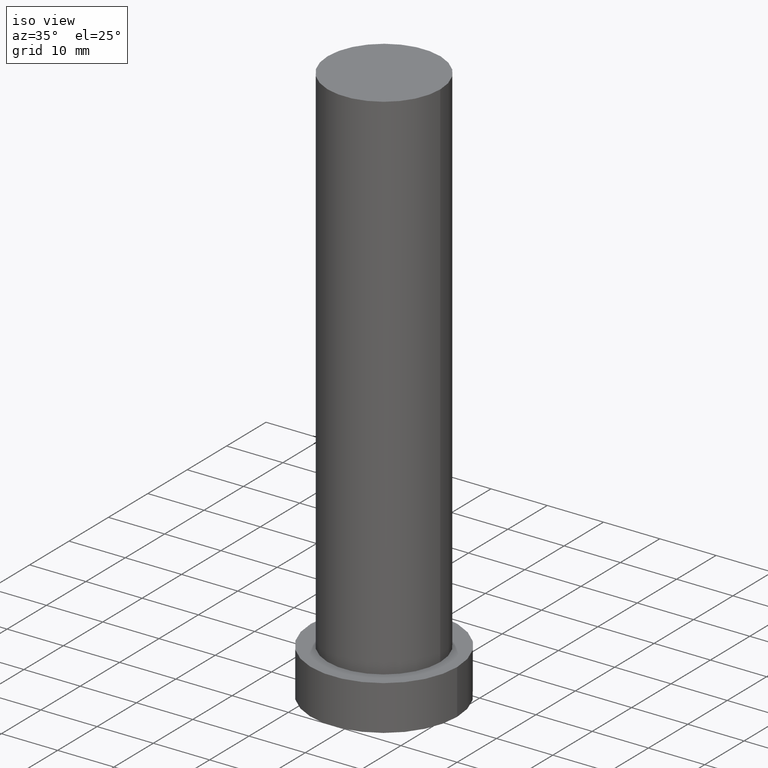
[diagram: clean part render]
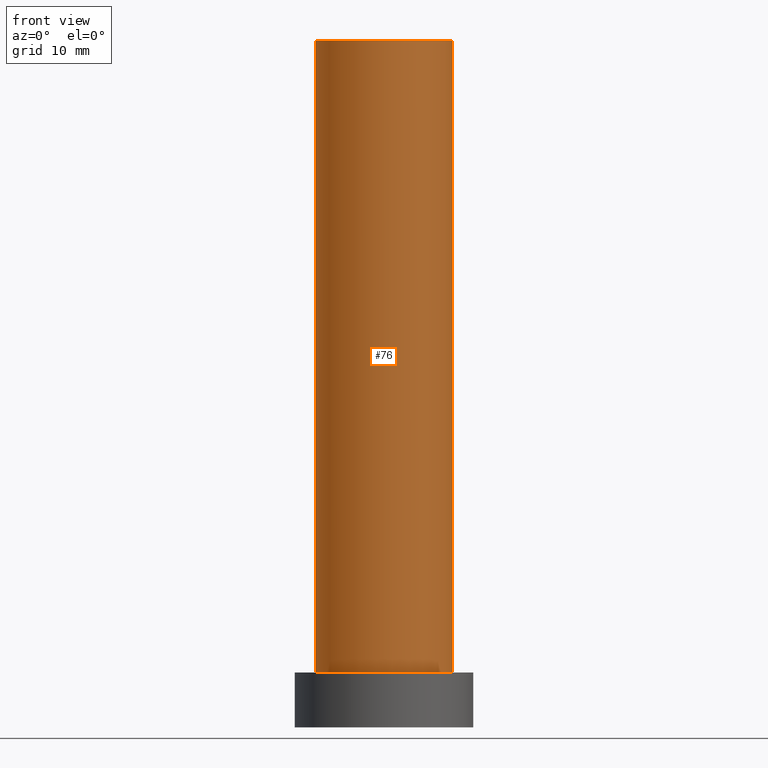
[diagram: tour spotlight — one face highlighted and labeled with its STEP entity id]
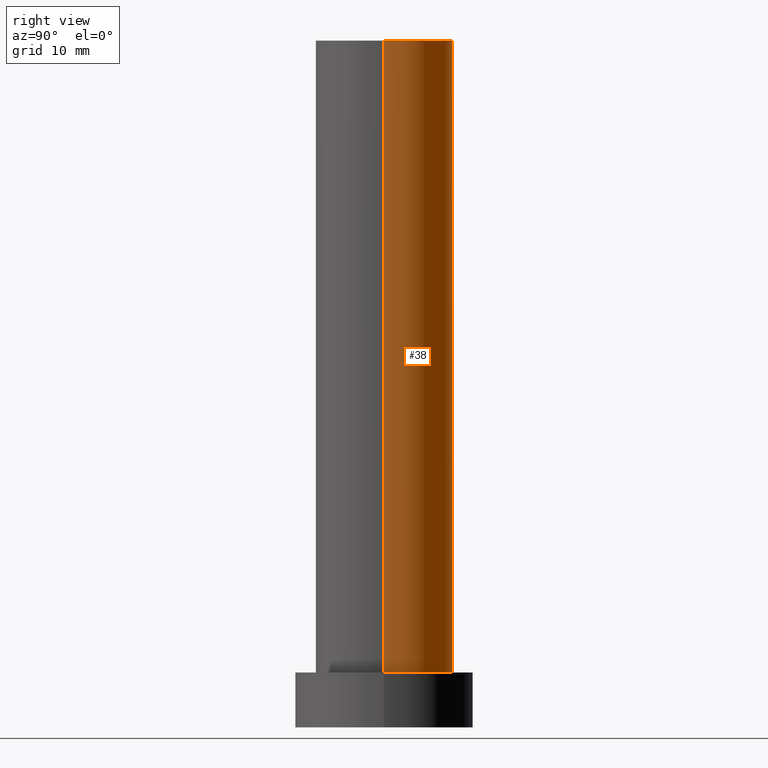
[diagram: tour spotlight — one face highlighted and labeled with its STEP entity id]
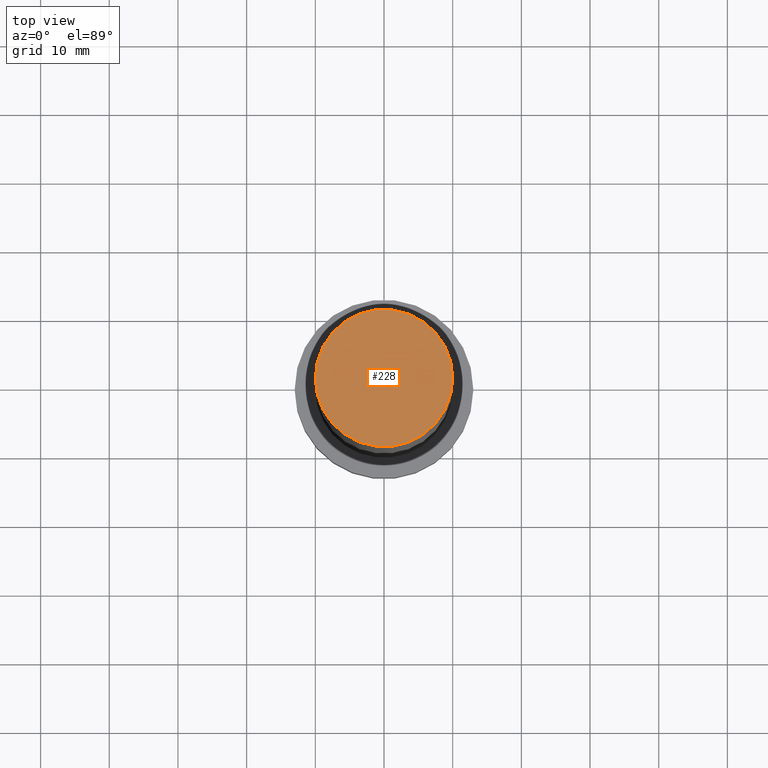
[diagram: tour spotlight — one face highlighted and labeled with its STEP entity id]
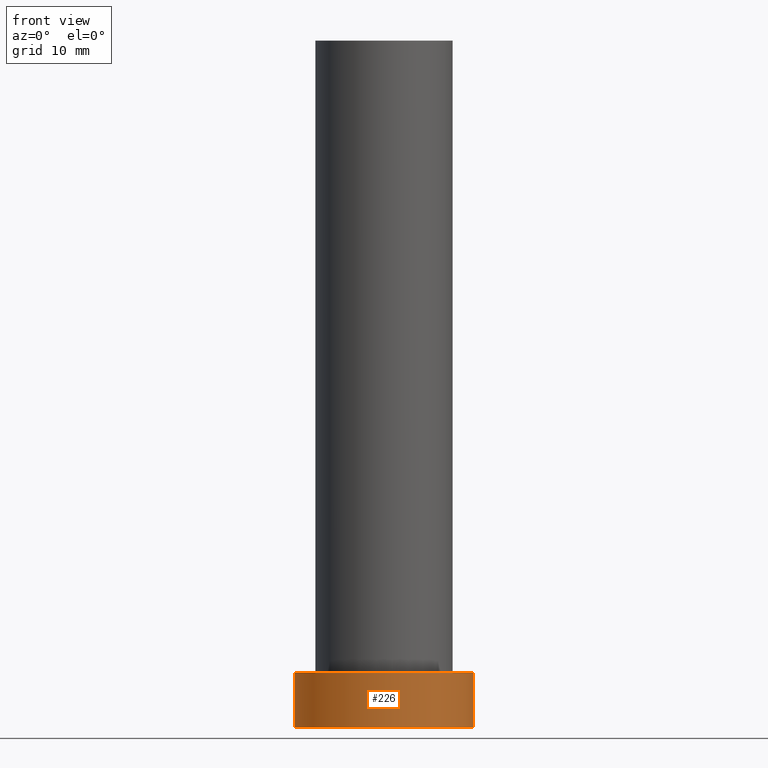
[diagram: tour spotlight — one face highlighted and labeled with its STEP entity id]
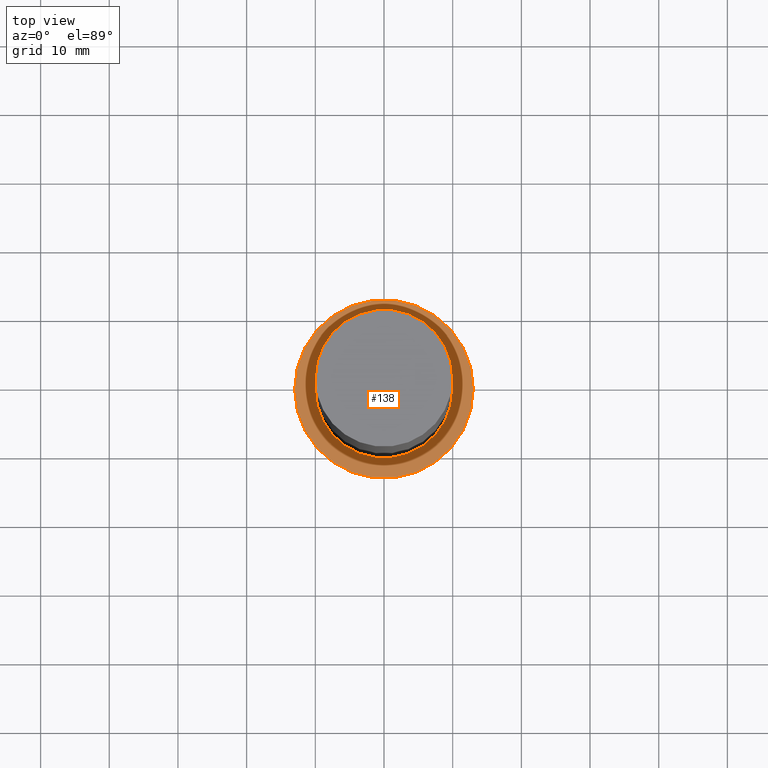
[diagram: tour spotlight — one face highlighted and labeled with its STEP entity id]
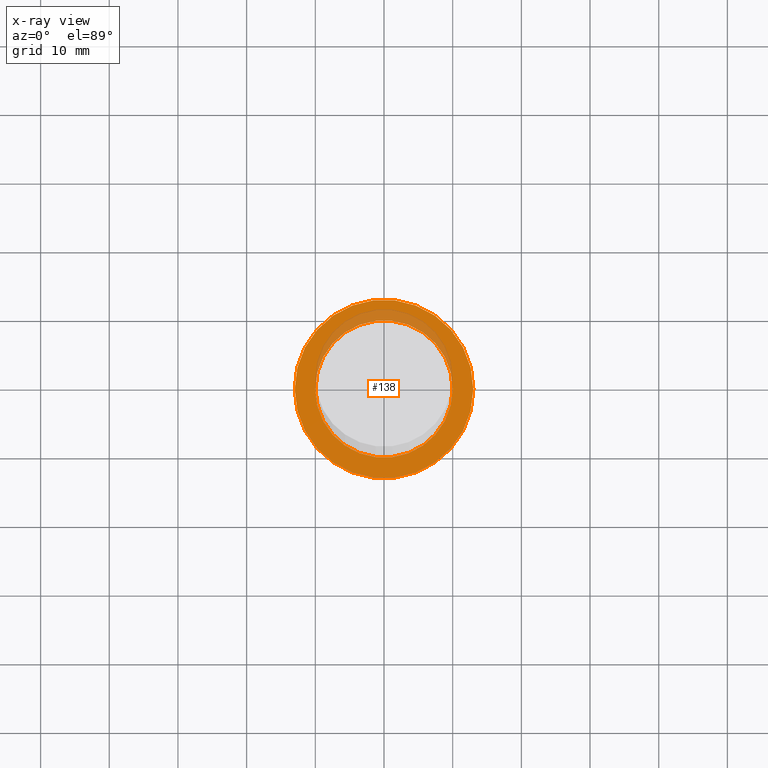
[diagram: x-ray of the same camera — body ghosted, this tour face saturated]
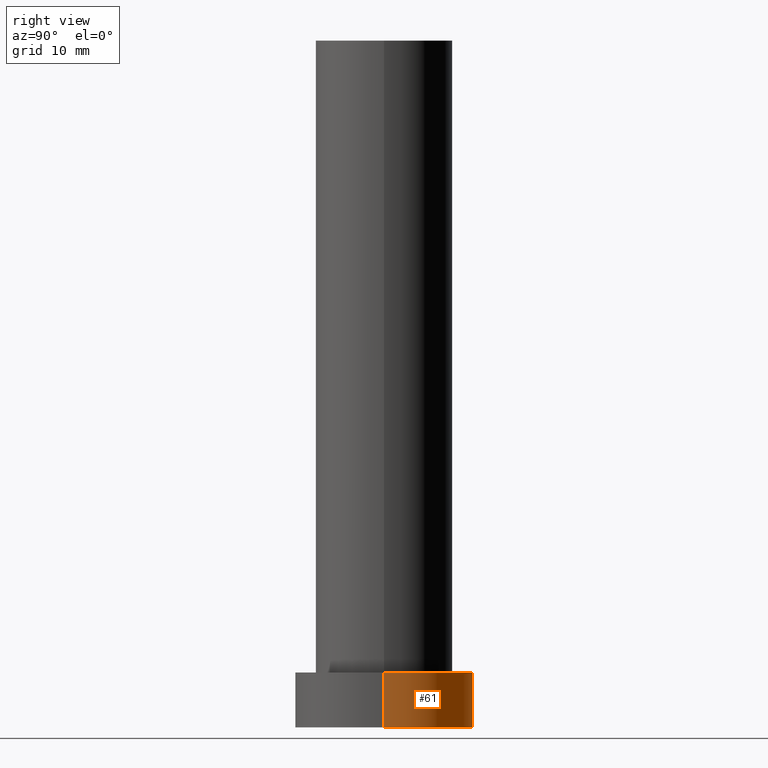
[diagram: tour spotlight — one face highlighted and labeled with its STEP entity id]
A machine part: a face-by-face anatomy tour. The part has 7 B-rep faces; the first image is the clean iso view, then the 6 largest visible faces are spotlighted one at a time (largest first), each with its STEP entity span.

Face 1 — front view, entity #76. In plain terms, the highlighted cylindrical surface (partial cylindrical patch) has radius 10 mm, axis along (-0, -0, -1).
Definition (entity closure, byte-faithful):
#4 = AXIS2_PLACEMENT_3D ( 'NONE', #30, #250, #51 ) ;
#7 = DIRECTION ( 'NONE',  ( 1.000000000000000000, 0.000000000000000000, 0.000000000000000000 ) ) ;
#9 = VECTOR ( 'NONE', #172, 1000.000000000000000 ) ;
#15 = CIRCLE ( 'NONE', #4, 10.00000000000000000 ) ;
#18 = VERTEX_POINT ( 'NONE', #124 ) ;
#22 = EDGE_CURVE ( 'NONE', #130, #18, #192, .T. ) ;
#30 = CARTESIAN_POINT ( 'NONE',  ( 0.000000000000000000, 0.000000000000000000, 8.000000000000000000 ) ) ;
#32 = DIRECTION ( 'NONE',  ( -0.000000000000000000, -0.000000000000000000, -1.000000000000000000 ) ) ;
#33 = CYLINDRICAL_SURFACE ( 'NONE', #144, 10.00000000000000000 ) ;
#51 = DIRECTION ( 'NONE',  ( 1.000000000000000000, 0.000000000000000000, 0.000000000000000000 ) ) ;
#52 = EDGE_LOOP ( 'NONE', ( #198, #238, #165, #135 ) ) ;
#54 = CARTESIAN_POINT ( 'NONE',  ( -10.00000000000000000, 0.000000000000000000, 100.0000000000000000 ) ) ;
#73 = EDGE_CURVE ( 'NONE', #18, #133, #15, .T. ) ;
#76 = ADVANCED_FACE ( 'NONE', ( #89 ), #33, .T. ) ;
#77 = CARTESIAN_POINT ( 'NONE',  ( 10.00000000000000000, 1.224646799147353256E-15, 8.000000000000000000 ) ) ;
#83 = DIRECTION ( 'NONE',  ( -1.000000000000000000, 0.000000000000000000, 0.000000000000000000 ) ) ;
#85 = CARTESIAN_POINT ( 'NONE',  ( -10.00000000000000000, 0.000000000000000000, 100.0000000000000000 ) ) ;
#89 = FACE_OUTER_BOUND ( 'NONE', #52, .T. ) ;
#90 = CIRCLE ( 'NONE', #241, 10.00000000000000000 ) ;
#92 = CARTESIAN_POINT ( 'NONE',  ( 10.00000000000000000, 1.224646799147353256E-15, 100.0000000000000000 ) ) ;
#124 = CARTESIAN_POINT ( 'NONE',  ( -10.00000000000000000, 0.000000000000000000, 8.000000000000000000 ) ) ;
#130 = VERTEX_POINT ( 'NONE', #54 ) ;
#133 = VERTEX_POINT ( 'NONE', #77 ) ;
#135 = ORIENTED_EDGE ( 'NONE', *, *, #73, .T. ) ;
#143 = VERTEX_POINT ( 'NONE', #207 ) ;
#144 = AXIS2_PLACEMENT_3D ( 'NONE', #191, #32, #83 ) ;
#161 = DIRECTION ( 'NONE',  ( -0.000000000000000000, -0.000000000000000000, -1.000000000000000000 ) ) ;
#165 = ORIENTED_EDGE ( 'NONE', *, *, #22, .T. ) ;
#172 = DIRECTION ( 'NONE',  ( -0.000000000000000000, -0.000000000000000000, -1.000000000000000000 ) ) ;
#174 = EDGE_CURVE ( 'NONE', #130, #143, #90, .T. ) ;
#182 = LINE ( 'NONE', #92, #248 ) ;
#191 = CARTESIAN_POINT ( 'NONE',  ( 0.000000000000000000, 0.000000000000000000, 100.0000000000000000 ) ) ;
#192 = LINE ( 'NONE', #85, #9 ) ;
#195 = CARTESIAN_POINT ( 'NONE',  ( 0.000000000000000000, 0.000000000000000000, 100.0000000000000000 ) ) ;
#198 = ORIENTED_EDGE ( 'NONE', *, *, #199, .F. ) ;
#199 = EDGE_CURVE ( 'NONE', #143, #133, #182, .T. ) ;
#206 = DIRECTION ( 'NONE',  ( 0.000000000000000000, 0.000000000000000000, 1.000000000000000000 ) ) ;
#207 = CARTESIAN_POINT ( 'NONE',  ( 10.00000000000000000, 1.224646799147353256E-15, 100.0000000000000000 ) ) ;
#238 = ORIENTED_EDGE ( 'NONE', *, *, #174, .F. ) ;
#241 = AXIS2_PLACEMENT_3D ( 'NONE', #195, #206, #7 ) ;
#248 = VECTOR ( 'NONE', #161, 1000.000000000000000 ) ;
#250 = DIRECTION ( 'NONE',  ( 0.000000000000000000, 0.000000000000000000, 1.000000000000000000 ) ) ;

Face 2 — right view, entity #38. In plain terms, the highlighted cylindrical surface (partial cylindrical patch) has radius 10 mm, axis along (-0, -0, -1).
Definition (entity closure, byte-faithful):
#9 = VECTOR ( 'NONE', #172, 1000.000000000000000 ) ;
#11 = FACE_OUTER_BOUND ( 'NONE', #215, .T. ) ;
#13 = ORIENTED_EDGE ( 'NONE', *, *, #22, .F. ) ;
#14 = CARTESIAN_POINT ( 'NONE',  ( 0.000000000000000000, 0.000000000000000000, 100.0000000000000000 ) ) ;
#17 = EDGE_CURVE ( 'NONE', #133, #18, #218, .T. ) ;
#18 = VERTEX_POINT ( 'NONE', #124 ) ;
#22 = EDGE_CURVE ( 'NONE', #130, #18, #192, .T. ) ;
#34 = DIRECTION ( 'NONE',  ( 0.000000000000000000, 0.000000000000000000, 1.000000000000000000 ) ) ;
#38 = ADVANCED_FACE ( 'NONE', ( #11 ), #101, .T. ) ;
#41 = ORIENTED_EDGE ( 'NONE', *, *, #17, .T. ) ;
#43 = ORIENTED_EDGE ( 'NONE', *, *, #80, .F. ) ;
#54 = CARTESIAN_POINT ( 'NONE',  ( -10.00000000000000000, 0.000000000000000000, 100.0000000000000000 ) ) ;
#72 = CARTESIAN_POINT ( 'NONE',  ( 0.000000000000000000, 0.000000000000000000, 8.000000000000000000 ) ) ;
#77 = CARTESIAN_POINT ( 'NONE',  ( 10.00000000000000000, 1.224646799147353256E-15, 8.000000000000000000 ) ) ;
#80 = EDGE_CURVE ( 'NONE', #143, #130, #225, .T. ) ;
#82 = AXIS2_PLACEMENT_3D ( 'NONE', #14, #127, #146 ) ;
#84 = AXIS2_PLACEMENT_3D ( 'NONE', #168, #252, #247 ) ;
#85 = CARTESIAN_POINT ( 'NONE',  ( -10.00000000000000000, 0.000000000000000000, 100.0000000000000000 ) ) ;
#92 = CARTESIAN_POINT ( 'NONE',  ( 10.00000000000000000, 1.224646799147353256E-15, 100.0000000000000000 ) ) ;
#101 = CYLINDRICAL_SURFACE ( 'NONE', #82, 10.00000000000000000 ) ;
#106 = AXIS2_PLACEMENT_3D ( 'NONE', #72, #34, #193 ) ;
#124 = CARTESIAN_POINT ( 'NONE',  ( -10.00000000000000000, 0.000000000000000000, 8.000000000000000000 ) ) ;
#127 = DIRECTION ( 'NONE',  ( -0.000000000000000000, -0.000000000000000000, -1.000000000000000000 ) ) ;
#130 = VERTEX_POINT ( 'NONE', #54 ) ;
#133 = VERTEX_POINT ( 'NONE', #77 ) ;
#143 = VERTEX_POINT ( 'NONE', #207 ) ;
#146 = DIRECTION ( 'NONE',  ( -1.000000000000000000, 0.000000000000000000, 0.000000000000000000 ) ) ;
#161 = DIRECTION ( 'NONE',  ( -0.000000000000000000, -0.000000000000000000, -1.000000000000000000 ) ) ;
#168 = CARTESIAN_POINT ( 'NONE',  ( 0.000000000000000000, 0.000000000000000000, 100.0000000000000000 ) ) ;
#172 = DIRECTION ( 'NONE',  ( -0.000000000000000000, -0.000000000000000000, -1.000000000000000000 ) ) ;
#182 = LINE ( 'NONE', #92, #248 ) ;
#192 = LINE ( 'NONE', #85, #9 ) ;
#193 = DIRECTION ( 'NONE',  ( 1.000000000000000000, 0.000000000000000000, 0.000000000000000000 ) ) ;
#199 = EDGE_CURVE ( 'NONE', #143, #133, #182, .T. ) ;
#207 = CARTESIAN_POINT ( 'NONE',  ( 10.00000000000000000, 1.224646799147353256E-15, 100.0000000000000000 ) ) ;
#215 = EDGE_LOOP ( 'NONE', ( #43, #253, #41, #13 ) ) ;
#218 = CIRCLE ( 'NONE', #106, 10.00000000000000000 ) ;
#225 = CIRCLE ( 'NONE', #84, 10.00000000000000000 ) ;
#247 = DIRECTION ( 'NONE',  ( 1.000000000000000000, 0.000000000000000000, 0.000000000000000000 ) ) ;
#248 = VECTOR ( 'NONE', #161, 1000.000000000000000 ) ;
#252 = DIRECTION ( 'NONE',  ( 0.000000000000000000, 0.000000000000000000, 1.000000000000000000 ) ) ;
#253 = ORIENTED_EDGE ( 'NONE', *, *, #199, .T. ) ;

Face 3 — top view, entity #228. In plain terms, the highlighted planar face has unit normal (0, 0, 1).
Definition (entity closure, byte-faithful):
#1 = DIRECTION ( 'NONE',  ( 1.000000000000000000, 0.000000000000000000, -0.000000000000000000 ) ) ;
#7 = DIRECTION ( 'NONE',  ( 1.000000000000000000, 0.000000000000000000, 0.000000000000000000 ) ) ;
#27 = ORIENTED_EDGE ( 'NONE', *, *, #174, .T. ) ;
#54 = CARTESIAN_POINT ( 'NONE',  ( -10.00000000000000000, 0.000000000000000000, 100.0000000000000000 ) ) ;
#60 = PLANE ( 'NONE',  #156 ) ;
#80 = EDGE_CURVE ( 'NONE', #143, #130, #225, .T. ) ;
#84 = AXIS2_PLACEMENT_3D ( 'NONE', #168, #252, #247 ) ;
#90 = CIRCLE ( 'NONE', #241, 10.00000000000000000 ) ;
#130 = VERTEX_POINT ( 'NONE', #54 ) ;
#134 = DIRECTION ( 'NONE',  ( 0.000000000000000000, 0.000000000000000000, 1.000000000000000000 ) ) ;
#141 = EDGE_LOOP ( 'NONE', ( #27, #201 ) ) ;
#143 = VERTEX_POINT ( 'NONE', #207 ) ;
#156 = AXIS2_PLACEMENT_3D ( 'NONE', #236, #134, #1 ) ;
#168 = CARTESIAN_POINT ( 'NONE',  ( 0.000000000000000000, 0.000000000000000000, 100.0000000000000000 ) ) ;
#174 = EDGE_CURVE ( 'NONE', #130, #143, #90, .T. ) ;
#195 = CARTESIAN_POINT ( 'NONE',  ( 0.000000000000000000, 0.000000000000000000, 100.0000000000000000 ) ) ;
#201 = ORIENTED_EDGE ( 'NONE', *, *, #80, .T. ) ;
#206 = DIRECTION ( 'NONE',  ( 0.000000000000000000, 0.000000000000000000, 1.000000000000000000 ) ) ;
#207 = CARTESIAN_POINT ( 'NONE',  ( 10.00000000000000000, 1.224646799147353256E-15, 100.0000000000000000 ) ) ;
#220 = FACE_OUTER_BOUND ( 'NONE', #141, .T. ) ;
#225 = CIRCLE ( 'NONE', #84, 10.00000000000000000 ) ;
#228 = ADVANCED_FACE ( 'NONE', ( #220 ), #60, .T. ) ;
#236 = CARTESIAN_POINT ( 'NONE',  ( 0.000000000000000000, 0.000000000000000000, 100.0000000000000000 ) ) ;
#241 = AXIS2_PLACEMENT_3D ( 'NONE', #195, #206, #7 ) ;
#247 = DIRECTION ( 'NONE',  ( 1.000000000000000000, 0.000000000000000000, 0.000000000000000000 ) ) ;
#252 = DIRECTION ( 'NONE',  ( 0.000000000000000000, 0.000000000000000000, 1.000000000000000000 ) ) ;

Face 4 — front view, entity #226. In plain terms, the highlighted cylindrical surface (partial cylindrical patch) has radius 13 mm, axis along (-0, -0, -1).
Definition (entity closure, byte-faithful):
#5 = VERTEX_POINT ( 'NONE', #103 ) ;
#6 = VECTOR ( 'NONE', #176, 1000.000000000000000 ) ;
#8 = CARTESIAN_POINT ( 'NONE',  ( 13.00000000000000178, 1.592040838891559293E-15, 0.000000000000000000 ) ) ;
#19 = CARTESIAN_POINT ( 'NONE',  ( 0.000000000000000000, 0.000000000000000000, 8.000000000000000000 ) ) ;
#21 = DIRECTION ( 'NONE',  ( 1.000000000000000000, 0.000000000000000000, 0.000000000000000000 ) ) ;
#24 = CARTESIAN_POINT ( 'NONE',  ( -13.00000000000000178, 0.000000000000000000, 8.000000000000000000 ) ) ;
#29 = EDGE_LOOP ( 'NONE', ( #151, #181, #131, #153 ) ) ;
#39 = AXIS2_PLACEMENT_3D ( 'NONE', #75, #53, #102 ) ;
#53 = DIRECTION ( 'NONE',  ( 0.000000000000000000, 0.000000000000000000, 1.000000000000000000 ) ) ;
#58 = VERTEX_POINT ( 'NONE', #8 ) ;
#62 = FACE_OUTER_BOUND ( 'NONE', #29, .T. ) ;
#69 = VECTOR ( 'NONE', #232, 1000.000000000000000 ) ;
#75 = CARTESIAN_POINT ( 'NONE',  ( 0.000000000000000000, 0.000000000000000000, 8.000000000000000000 ) ) ;
#79 = VERTEX_POINT ( 'NONE', #99 ) ;
#81 = EDGE_CURVE ( 'NONE', #79, #58, #170, .T. ) ;
#88 = EDGE_CURVE ( 'NONE', #212, #79, #205, .T. ) ;
#94 = LINE ( 'NONE', #24, #6 ) ;
#99 = CARTESIAN_POINT ( 'NONE',  ( 13.00000000000000178, 1.592040838891559293E-15, 8.000000000000000000 ) ) ;
#102 = DIRECTION ( 'NONE',  ( 1.000000000000000000, 0.000000000000000000, 0.000000000000000000 ) ) ;
#103 = CARTESIAN_POINT ( 'NONE',  ( -13.00000000000000178, 0.000000000000000000, 0.000000000000000000 ) ) ;
#113 = DIRECTION ( 'NONE',  ( 0.000000000000000000, 0.000000000000000000, 1.000000000000000000 ) ) ;
#118 = AXIS2_PLACEMENT_3D ( 'NONE', #213, #113, #21 ) ;
#129 = CARTESIAN_POINT ( 'NONE',  ( 13.00000000000000178, 1.592040838891559293E-15, 8.000000000000000000 ) ) ;
#131 = ORIENTED_EDGE ( 'NONE', *, *, #210, .T. ) ;
#136 = DIRECTION ( 'NONE',  ( -1.000000000000000000, 0.000000000000000000, 0.000000000000000000 ) ) ;
#150 = AXIS2_PLACEMENT_3D ( 'NONE', #19, #235, #136 ) ;
#151 = ORIENTED_EDGE ( 'NONE', *, *, #81, .F. ) ;
#153 = ORIENTED_EDGE ( 'NONE', *, *, #231, .T. ) ;
#170 = LINE ( 'NONE', #129, #69 ) ;
#176 = DIRECTION ( 'NONE',  ( -0.000000000000000000, -0.000000000000000000, -1.000000000000000000 ) ) ;
#181 = ORIENTED_EDGE ( 'NONE', *, *, #88, .F. ) ;
#197 = CARTESIAN_POINT ( 'NONE',  ( -13.00000000000000178, 0.000000000000000000, 8.000000000000000000 ) ) ;
#205 = CIRCLE ( 'NONE', #39, 13.00000000000000178 ) ;
#208 = CIRCLE ( 'NONE', #118, 13.00000000000000178 ) ;
#210 = EDGE_CURVE ( 'NONE', #212, #5, #94, .T. ) ;
#212 = VERTEX_POINT ( 'NONE', #197 ) ;
#213 = CARTESIAN_POINT ( 'NONE',  ( 0.000000000000000000, 0.000000000000000000, 0.000000000000000000 ) ) ;
#226 = ADVANCED_FACE ( 'NONE', ( #62 ), #255, .T. ) ;
#231 = EDGE_CURVE ( 'NONE', #5, #58, #208, .T. ) ;
#232 = DIRECTION ( 'NONE',  ( -0.000000000000000000, -0.000000000000000000, -1.000000000000000000 ) ) ;
#235 = DIRECTION ( 'NONE',  ( -0.000000000000000000, -0.000000000000000000, -1.000000000000000000 ) ) ;
#255 = CYLINDRICAL_SURFACE ( 'NONE', #150, 13.00000000000000178 ) ;

Face 5 — top view, entity #138. An x-ray twin of the same camera follows (body ghosted, this face saturated) — the face is partly hidden behind the body. In plain terms, the highlighted planar face has unit normal (0, 0, 1).
Definition (entity closure, byte-faithful):
#3 = EDGE_LOOP ( 'NONE', ( #216, #159 ) ) ;
#4 = AXIS2_PLACEMENT_3D ( 'NONE', #30, #250, #51 ) ;
#15 = CIRCLE ( 'NONE', #4, 10.00000000000000000 ) ;
#17 = EDGE_CURVE ( 'NONE', #133, #18, #218, .T. ) ;
#18 = VERTEX_POINT ( 'NONE', #124 ) ;
#30 = CARTESIAN_POINT ( 'NONE',  ( 0.000000000000000000, 0.000000000000000000, 8.000000000000000000 ) ) ;
#34 = DIRECTION ( 'NONE',  ( 0.000000000000000000, 0.000000000000000000, 1.000000000000000000 ) ) ;
#37 = ORIENTED_EDGE ( 'NONE', *, *, #17, .F. ) ;
#39 = AXIS2_PLACEMENT_3D ( 'NONE', #75, #53, #102 ) ;
#50 = DIRECTION ( 'NONE',  ( 1.000000000000000000, 0.000000000000000000, -0.000000000000000000 ) ) ;
#51 = DIRECTION ( 'NONE',  ( 1.000000000000000000, 0.000000000000000000, 0.000000000000000000 ) ) ;
#53 = DIRECTION ( 'NONE',  ( 0.000000000000000000, 0.000000000000000000, 1.000000000000000000 ) ) ;
#70 = DIRECTION ( 'NONE',  ( 0.000000000000000000, 0.000000000000000000, 1.000000000000000000 ) ) ;
#71 = CIRCLE ( 'NONE', #117, 13.00000000000000178 ) ;
#72 = CARTESIAN_POINT ( 'NONE',  ( 0.000000000000000000, 0.000000000000000000, 8.000000000000000000 ) ) ;
#73 = EDGE_CURVE ( 'NONE', #18, #133, #15, .T. ) ;
#75 = CARTESIAN_POINT ( 'NONE',  ( 0.000000000000000000, 0.000000000000000000, 8.000000000000000000 ) ) ;
#77 = CARTESIAN_POINT ( 'NONE',  ( 10.00000000000000000, 1.224646799147353256E-15, 8.000000000000000000 ) ) ;
#79 = VERTEX_POINT ( 'NONE', #99 ) ;
#88 = EDGE_CURVE ( 'NONE', #212, #79, #205, .T. ) ;
#96 = ORIENTED_EDGE ( 'NONE', *, *, #73, .F. ) ;
#99 = CARTESIAN_POINT ( 'NONE',  ( 13.00000000000000178, 1.592040838891559293E-15, 8.000000000000000000 ) ) ;
#102 = DIRECTION ( 'NONE',  ( 1.000000000000000000, 0.000000000000000000, 0.000000000000000000 ) ) ;
#104 = DIRECTION ( 'NONE',  ( 0.000000000000000000, 0.000000000000000000, 1.000000000000000000 ) ) ;
#106 = AXIS2_PLACEMENT_3D ( 'NONE', #72, #34, #193 ) ;
#111 = AXIS2_PLACEMENT_3D ( 'NONE', #122, #104, #50 ) ;
#117 = AXIS2_PLACEMENT_3D ( 'NONE', #167, #70, #145 ) ;
#122 = CARTESIAN_POINT ( 'NONE',  ( 0.000000000000000000, 0.000000000000000000, 8.000000000000000000 ) ) ;
#123 = FACE_OUTER_BOUND ( 'NONE', #3, .T. ) ;
#124 = CARTESIAN_POINT ( 'NONE',  ( -10.00000000000000000, 0.000000000000000000, 8.000000000000000000 ) ) ;
#133 = VERTEX_POINT ( 'NONE', #77 ) ;
#138 = ADVANCED_FACE ( 'NONE', ( #188, #123 ), #149, .T. ) ;
#145 = DIRECTION ( 'NONE',  ( 1.000000000000000000, 0.000000000000000000, 0.000000000000000000 ) ) ;
#149 = PLANE ( 'NONE',  #111 ) ;
#159 = ORIENTED_EDGE ( 'NONE', *, *, #184, .T. ) ;
#167 = CARTESIAN_POINT ( 'NONE',  ( 0.000000000000000000, 0.000000000000000000, 8.000000000000000000 ) ) ;
#184 = EDGE_CURVE ( 'NONE', #79, #212, #71, .T. ) ;
#188 = FACE_BOUND ( 'NONE', #223, .T. ) ;
#193 = DIRECTION ( 'NONE',  ( 1.000000000000000000, 0.000000000000000000, 0.000000000000000000 ) ) ;
#197 = CARTESIAN_POINT ( 'NONE',  ( -13.00000000000000178, 0.000000000000000000, 8.000000000000000000 ) ) ;
#205 = CIRCLE ( 'NONE', #39, 13.00000000000000178 ) ;
#212 = VERTEX_POINT ( 'NONE', #197 ) ;
#216 = ORIENTED_EDGE ( 'NONE', *, *, #88, .T. ) ;
#218 = CIRCLE ( 'NONE', #106, 10.00000000000000000 ) ;
#223 = EDGE_LOOP ( 'NONE', ( #96, #37 ) ) ;
#250 = DIRECTION ( 'NONE',  ( 0.000000000000000000, 0.000000000000000000, 1.000000000000000000 ) ) ;

Face 6 — right view, entity #61. In plain terms, the highlighted cylindrical surface (partial cylindrical patch) has radius 13 mm, axis along (-0, -0, -1).
Definition (entity closure, byte-faithful):
#2 = ORIENTED_EDGE ( 'NONE', *, *, #210, .F. ) ;
#5 = VERTEX_POINT ( 'NONE', #103 ) ;
#6 = VECTOR ( 'NONE', #176, 1000.000000000000000 ) ;
#8 = CARTESIAN_POINT ( 'NONE',  ( 13.00000000000000178, 1.592040838891559293E-15, 0.000000000000000000 ) ) ;
#24 = CARTESIAN_POINT ( 'NONE',  ( -13.00000000000000178, 0.000000000000000000, 8.000000000000000000 ) ) ;
#36 = ORIENTED_EDGE ( 'NONE', *, *, #81, .T. ) ;
#48 = EDGE_CURVE ( 'NONE', #58, #5, #230, .T. ) ;
#56 = DIRECTION ( 'NONE',  ( -0.000000000000000000, -0.000000000000000000, -1.000000000000000000 ) ) ;
#58 = VERTEX_POINT ( 'NONE', #8 ) ;
#61 = ADVANCED_FACE ( 'NONE', ( #152 ), #209, .T. ) ;
#65 = AXIS2_PLACEMENT_3D ( 'NONE', #171, #56, #86 ) ;
#69 = VECTOR ( 'NONE', #232, 1000.000000000000000 ) ;
#70 = DIRECTION ( 'NONE',  ( 0.000000000000000000, 0.000000000000000000, 1.000000000000000000 ) ) ;
#71 = CIRCLE ( 'NONE', #117, 13.00000000000000178 ) ;
#79 = VERTEX_POINT ( 'NONE', #99 ) ;
#81 = EDGE_CURVE ( 'NONE', #79, #58, #170, .T. ) ;
#86 = DIRECTION ( 'NONE',  ( -1.000000000000000000, 0.000000000000000000, 0.000000000000000000 ) ) ;
#94 = LINE ( 'NONE', #24, #6 ) ;
#99 = CARTESIAN_POINT ( 'NONE',  ( 13.00000000000000178, 1.592040838891559293E-15, 8.000000000000000000 ) ) ;
#103 = CARTESIAN_POINT ( 'NONE',  ( -13.00000000000000178, 0.000000000000000000, 0.000000000000000000 ) ) ;
#117 = AXIS2_PLACEMENT_3D ( 'NONE', #167, #70, #145 ) ;
#121 = EDGE_LOOP ( 'NONE', ( #186, #36, #132, #2 ) ) ;
#129 = CARTESIAN_POINT ( 'NONE',  ( 13.00000000000000178, 1.592040838891559293E-15, 8.000000000000000000 ) ) ;
#132 = ORIENTED_EDGE ( 'NONE', *, *, #48, .T. ) ;
#145 = DIRECTION ( 'NONE',  ( 1.000000000000000000, 0.000000000000000000, 0.000000000000000000 ) ) ;
#147 = DIRECTION ( 'NONE',  ( 0.000000000000000000, 0.000000000000000000, 1.000000000000000000 ) ) ;
#152 = FACE_OUTER_BOUND ( 'NONE', #121, .T. ) ;
#167 = CARTESIAN_POINT ( 'NONE',  ( 0.000000000000000000, 0.000000000000000000, 8.000000000000000000 ) ) ;
#170 = LINE ( 'NONE', #129, #69 ) ;
#171 = CARTESIAN_POINT ( 'NONE',  ( 0.000000000000000000, 0.000000000000000000, 8.000000000000000000 ) ) ;
#176 = DIRECTION ( 'NONE',  ( -0.000000000000000000, -0.000000000000000000, -1.000000000000000000 ) ) ;
#179 = AXIS2_PLACEMENT_3D ( 'NONE', #249, #147, #229 ) ;
#184 = EDGE_CURVE ( 'NONE', #79, #212, #71, .T. ) ;
#186 = ORIENTED_EDGE ( 'NONE', *, *, #184, .F. ) ;
#197 = CARTESIAN_POINT ( 'NONE',  ( -13.00000000000000178, 0.000000000000000000, 8.000000000000000000 ) ) ;
#209 = CYLINDRICAL_SURFACE ( 'NONE', #65, 13.00000000000000178 ) ;
#210 = EDGE_CURVE ( 'NONE', #212, #5, #94, .T. ) ;
#212 = VERTEX_POINT ( 'NONE', #197 ) ;
#229 = DIRECTION ( 'NONE',  ( 1.000000000000000000, 0.000000000000000000, 0.000000000000000000 ) ) ;
#230 = CIRCLE ( 'NONE', #179, 13.00000000000000178 ) ;
#232 = DIRECTION ( 'NONE',  ( -0.000000000000000000, -0.000000000000000000, -1.000000000000000000 ) ) ;
#249 = CARTESIAN_POINT ( 'NONE',  ( 0.000000000000000000, 0.000000000000000000, 0.000000000000000000 ) ) ;